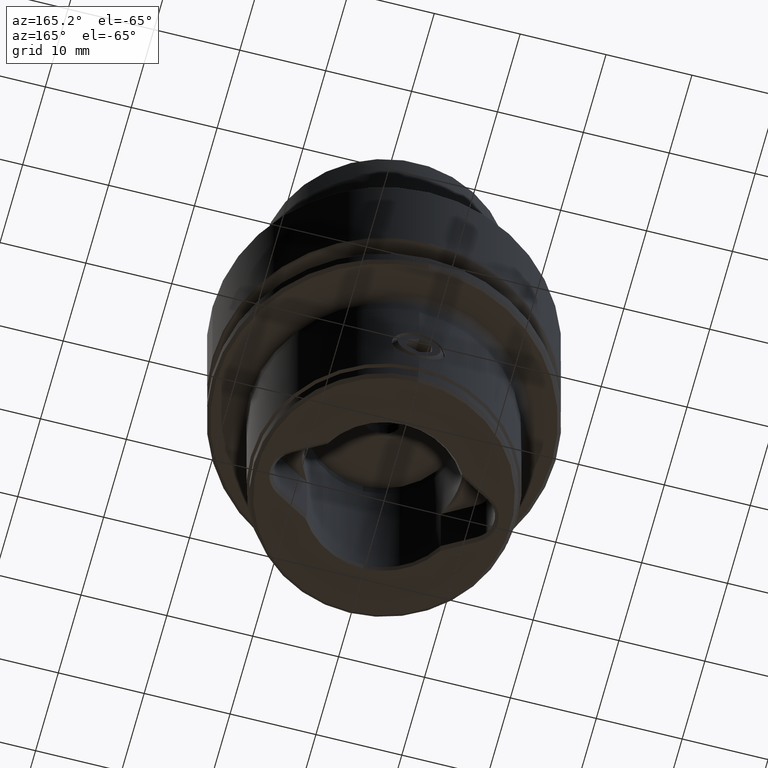
[diagram: clean part render]
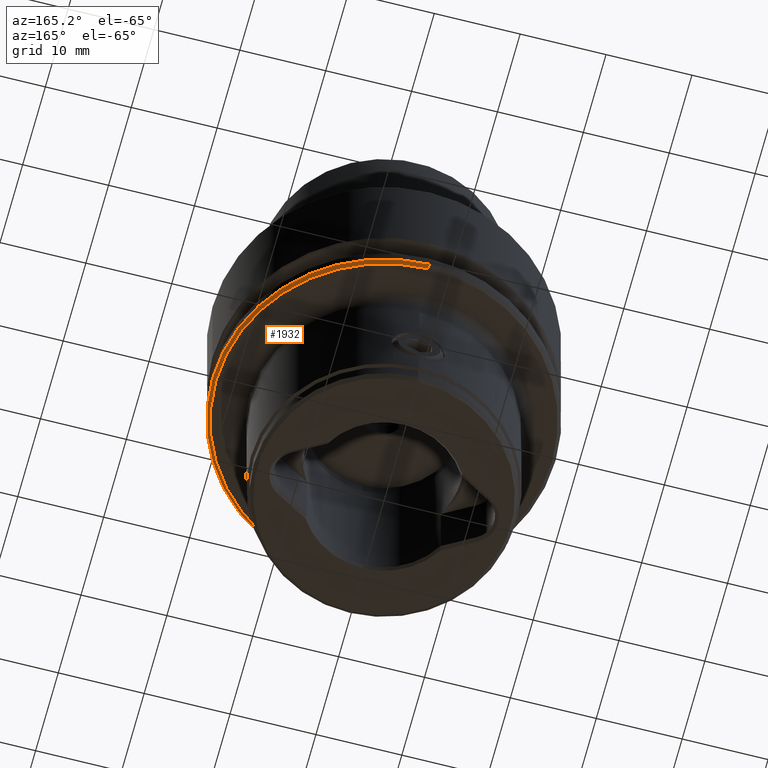
[diagram: same view with one face highlighted and labeled with its STEP entity id]
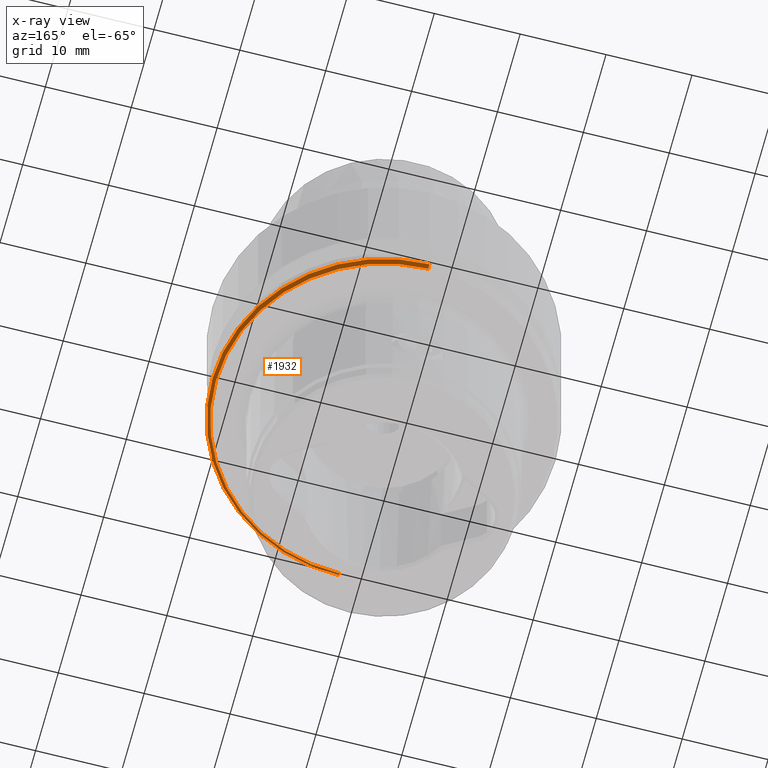
[diagram: x-ray of the same camera — body ghosted, the highlighted face saturated]
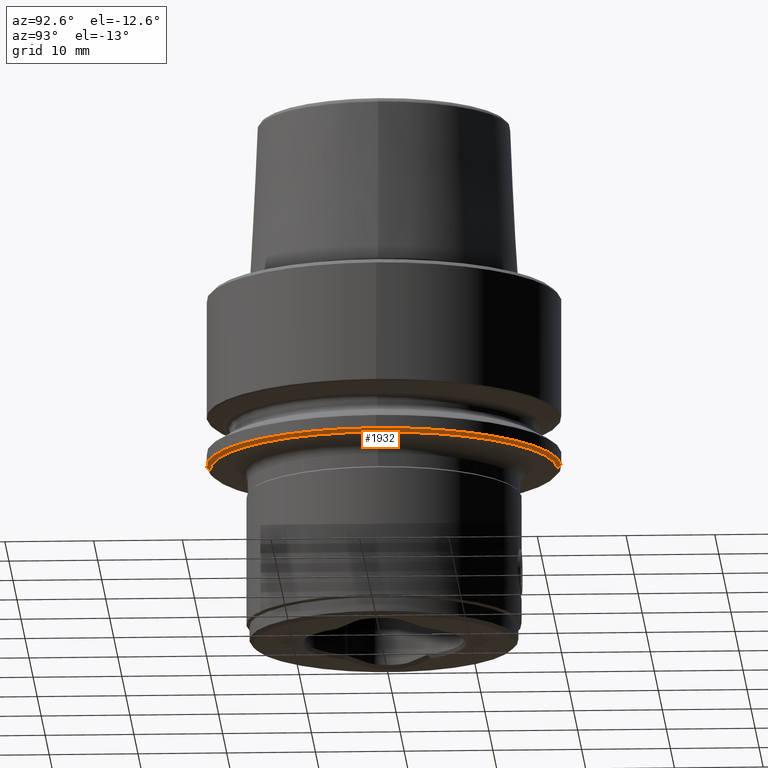
[diagram: same view with one face highlighted and labeled with its STEP entity id]
A machine part, auxiliary view. The second image highlights one B-rep face of the part: STEP entity #1932.
The next image is the same camera in x-ray: the body ghosted, the highlighted face saturated — about 11% of this face is hidden behind the body in this view.
A second angle (auxiliary view) of the same face is appended — the face is thin or edge-on in the first view.
In plain terms, the highlighted conical surface has half-angle 45 deg.
Its self-contained STEP definition (entity closure, byte-faithful):
#778=VERTEX_POINT('NONE',#2177);
#1032=EDGE_CURVE('NONE',#778,#1860,#2458,.T.);
#1138=EDGE_CURVE('NONE',#1758,#778,#2585,.T.);
#1502=EDGE_CURVE('NONE',#1520,#1630,#2991,.T.);
#1520=VERTEX_POINT('NONE',#3011);
#1630=VERTEX_POINT('NONE',#3131);
#1676=EDGE_CURVE('NONE',#1758,#1520,#3182,.T.);
#1758=VERTEX_POINT('NONE',#3278);
#1784=EDGE_CURVE('NONE',#1860,#1630,#3304,.T.);
#1860=VERTEX_POINT('NONE',#3387);
#1932=ADVANCED_FACE('NONE',(#3467),#3468,.T.);
#2177=CARTESIAN_POINT('',(0.0,19.975,-19.55));
#2458=CIRCLE('',#4153,19.975);
#2585=LINE('',#4339,#4340);
#2991=LINE('',#5025,#5026);
#3011=CARTESIAN_POINT('',(-2.42173904531389E-015,-19.575,-19.95));
#3131=CARTESIAN_POINT('',(-2.44623198129684E-015,-19.975,-19.55));
#3182=CIRCLE('',#5345,19.575);
#3278=CARTESIAN_POINT('',(0.0,19.575,-19.95));
#3304=CIRCLE('',#5503,19.975);
#3387=CARTESIAN_POINT('',(19.975,-2.44623198129684E-015,-19.55));
#3467=FACE_OUTER_BOUND('',#5710,.T.);
#3468=CONICAL_SURFACE('',#5711,20.125,0.785398163397452);
#4153=AXIS2_PLACEMENT_3D('',#6387,#6388,#6389);
#4339=CARTESIAN_POINT('',(0.0,20.125,-19.4));
#4340=VECTOR('',#6601,1000.0);
#5025=CARTESIAN_POINT('',(-2.46460168328405E-015,-20.125,-19.4));
#5026=VECTOR('',#7116,1000.0);
#5345=AXIS2_PLACEMENT_3D('',#7336,#7337,#7338);
#5503=AXIS2_PLACEMENT_3D('',#7515,#7516,#7517);
#5710=EDGE_LOOP('',(#7707,#7708,#7709,#7710,#7711));
#5711=AXIS2_PLACEMENT_3D('',#7712,#7713,#7714);
#6387=CARTESIAN_POINT('',(0.0,1.66619819579943E-016,-19.55));
#6388=DIRECTION('',(0.0,0.0,-1.0));
#6389=DIRECTION('',(0.0,1.0,0.0));
#6601=DIRECTION('',(-0.0,0.70710678118655,0.707106781186545));
#7116=DIRECTION('',(-8.65956056235496E-017,-0.70710678118655,0.707106781186545));
#7336=CARTESIAN_POINT('',(0.0,1.62306037843245E-016,-19.95));
#7337=DIRECTION('',(0.0,0.0,-1.0));
#7338=DIRECTION('',(0.0,1.0,0.0));
#7515=CARTESIAN_POINT('',(0.0,1.66619819579943E-016,-19.55));
#7516=DIRECTION('',(0.0,0.0,-1.0));
#7517=DIRECTION('',(0.0,1.0,0.0));
#7707=ORIENTED_EDGE('',*,*,#1502,.F.);
#7708=ORIENTED_EDGE('',*,*,#1676,.F.);
#7709=ORIENTED_EDGE('',*,*,#1138,.T.);
#7710=ORIENTED_EDGE('',*,*,#1032,.T.);
#7711=ORIENTED_EDGE('',*,*,#1784,.T.);
#7712=CARTESIAN_POINT('',(0.0,1.68237487731204E-016,-19.4));
#7713=DIRECTION('',(-0.0,-0.0,1.0));
#7714=DIRECTION('',(0.0,1.0,0.0));